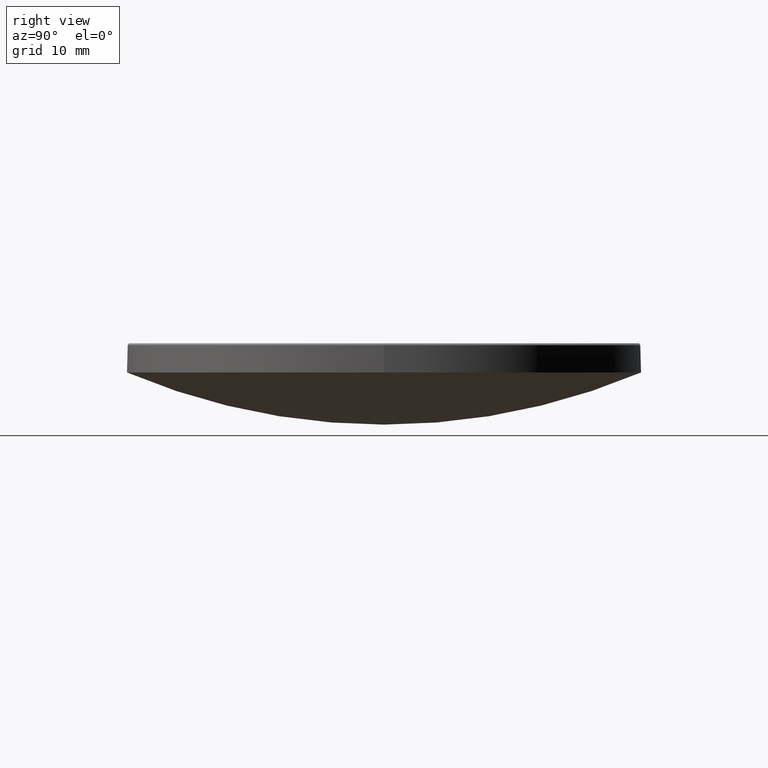
[diagram: clean part render]
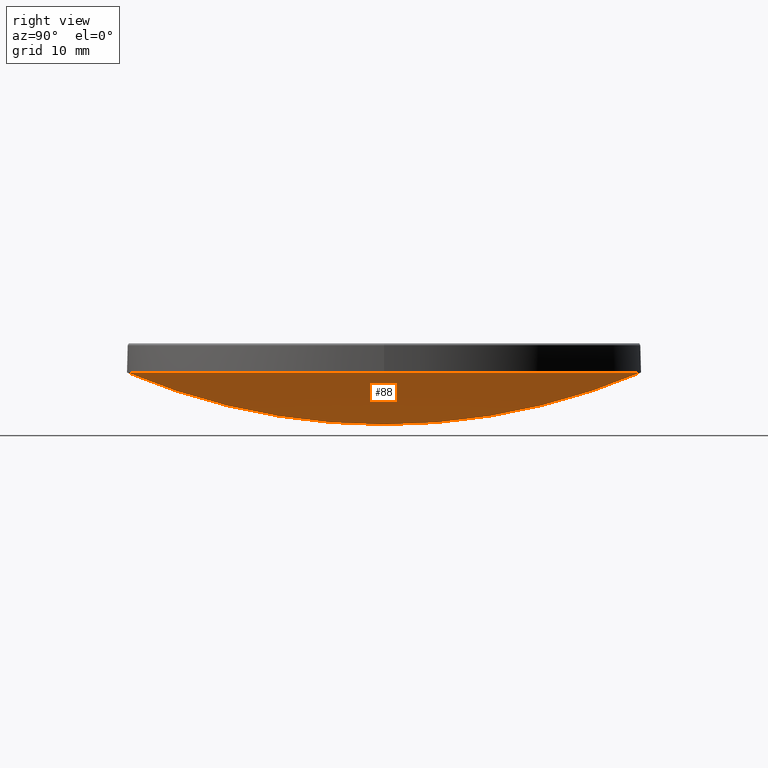
[diagram: same view with one face highlighted and labeled with its STEP entity id]
A machine part, right view. The second image highlights one B-rep face of the part: STEP entity #88.
In plain terms, the highlighted spherical surface has radius 65.16 mm.
Its self-contained STEP definition (entity closure, byte-faithful):
#10 = CIRCLE ( 'NONE', #280, 25.39999999999999503 ) ;
#11 = ORIENTED_EDGE ( 'NONE', *, *, #240, .T. ) ;
#16 = AXIS2_PLACEMENT_3D ( 'NONE', #89, #165, #255 ) ;
#28 = DIRECTION ( 'NONE',  ( 1.000000000000000000, 0.000000000000000000, 0.000000000000000000 ) ) ;
#37 = EDGE_CURVE ( 'NONE', #82, #161, #155, .T. ) ;
#44 = CARTESIAN_POINT ( 'NONE',  ( 0.000000000000000000, 25.39999999999998437, 12.99999999999999822 ) ) ;
#51 = CARTESIAN_POINT ( 'NONE',  ( 0.000000000000000000, 0.000000000000000000, 13.00000000000000000 ) ) ;
#52 = DIRECTION ( 'NONE',  ( 0.000000000000000000, 0.000000000000000000, -1.000000000000000000 ) ) ;
#57 = ORIENTED_EDGE ( 'NONE', *, *, #262, .F. ) ;
#63 = CIRCLE ( 'NONE', #269, 65.15999999999999659 ) ;
#69 = CARTESIAN_POINT ( 'NONE',  ( 0.000000000000000000, 3.989899271622076049E-15, 7.845546410311113661 ) ) ;
#78 = DIRECTION ( 'NONE',  ( 1.000000000000000000, 0.000000000000000000, 0.000000000000000000 ) ) ;
#82 = VERTEX_POINT ( 'NONE', #69 ) ;
#84 = EDGE_LOOP ( 'NONE', ( #208, #11, #57, #186 ) ) ;
#88 = ADVANCED_FACE ( 'NONE', ( #111 ), #195, .T. ) ;
#89 = CARTESIAN_POINT ( 'NONE',  ( 0.000000000000000000, 0.000000000000000000, 73.00554641031111203 ) ) ;
#111 = FACE_OUTER_BOUND ( 'NONE', #84, .T. ) ;
#127 = AXIS2_PLACEMENT_3D ( 'NONE', #172, #256, #259 ) ;
#130 = CARTESIAN_POINT ( 'NONE',  ( -3.110602869834275682E-15, -25.39999999999998437, 12.99999999999999822 ) ) ;
#152 = CARTESIAN_POINT ( 'NONE',  ( 25.39999999999999503, 3.110602869834276471E-15, 13.00000000000000000 ) ) ;
#155 = CIRCLE ( 'NONE', #16, 65.15999999999999659 ) ;
#161 = VERTEX_POINT ( 'NONE', #130 ) ;
#164 = VERTEX_POINT ( 'NONE', #44 ) ;
#165 = DIRECTION ( 'NONE',  ( -1.000000000000000000, 1.224646799147353207E-16, 0.000000000000000000 ) ) ;
#172 = CARTESIAN_POINT ( 'NONE',  ( 0.000000000000000000, 0.000000000000000000, 73.00554641031111203 ) ) ;
#180 = AXIS2_PLACEMENT_3D ( 'NONE', #51, #266, #78 ) ;
#186 = ORIENTED_EDGE ( 'NONE', *, *, #275, .F. ) ;
#195 = SPHERICAL_SURFACE ( 'NONE', #127, 65.15999999999999659 ) ;
#200 = DIRECTION ( 'NONE',  ( 1.000000000000000000, -0.000000000000000000, 0.000000000000000000 ) ) ;
#208 = ORIENTED_EDGE ( 'NONE', *, *, #37, .F. ) ;
#210 = VERTEX_POINT ( 'NONE', #152 ) ;
#220 = CIRCLE ( 'NONE', #180, 25.39999999999999503 ) ;
#240 = EDGE_CURVE ( 'NONE', #82, #164, #63, .T. ) ;
#245 = CARTESIAN_POINT ( 'NONE',  ( 0.000000000000000000, 0.000000000000000000, 13.00000000000000000 ) ) ;
#255 = DIRECTION ( 'NONE',  ( -1.224646799147352961E-16, -1.000000000000000000, 0.000000000000000000 ) ) ;
#256 = DIRECTION ( 'NONE',  ( -1.000000000000000000, 0.000000000000000000, 0.000000000000000000 ) ) ;
#259 = DIRECTION ( 'NONE',  ( 0.000000000000000000, 1.000000000000000000, 0.000000000000000000 ) ) ;
#262 = EDGE_CURVE ( 'NONE', #210, #164, #10, .T. ) ;
#265 = CARTESIAN_POINT ( 'NONE',  ( 0.000000000000000000, 0.000000000000000000, 73.00554641031111203 ) ) ;
#266 = DIRECTION ( 'NONE',  ( -0.000000000000000000, -0.000000000000000000, 1.000000000000000000 ) ) ;
#268 = DIRECTION ( 'NONE',  ( -0.000000000000000000, -0.000000000000000000, 1.000000000000000000 ) ) ;
#269 = AXIS2_PLACEMENT_3D ( 'NONE', #265, #200, #52 ) ;
#275 = EDGE_CURVE ( 'NONE', #161, #210, #220, .T. ) ;
#280 = AXIS2_PLACEMENT_3D ( 'NONE', #245, #268, #28 ) ;